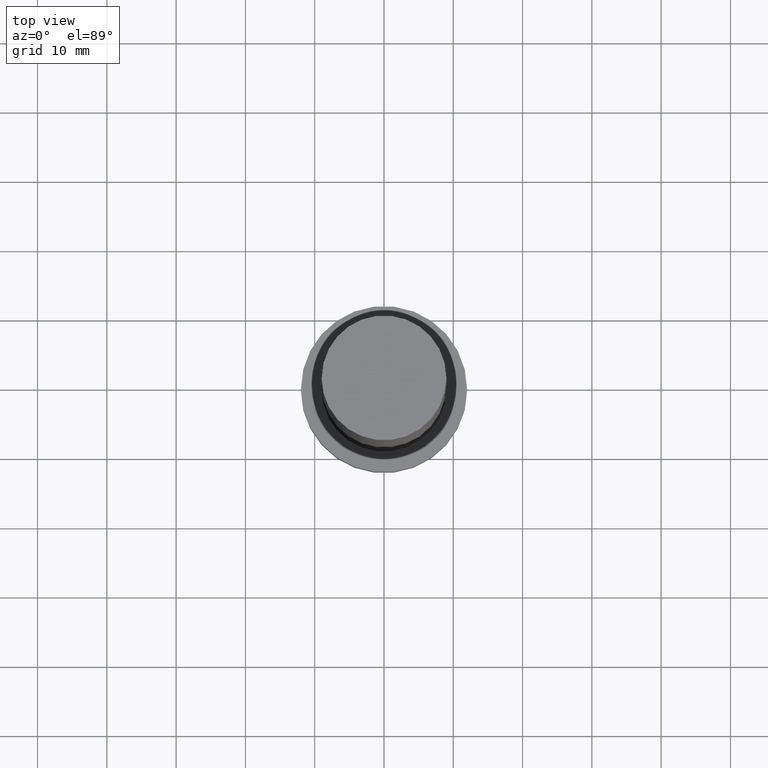
[diagram: clean part render]
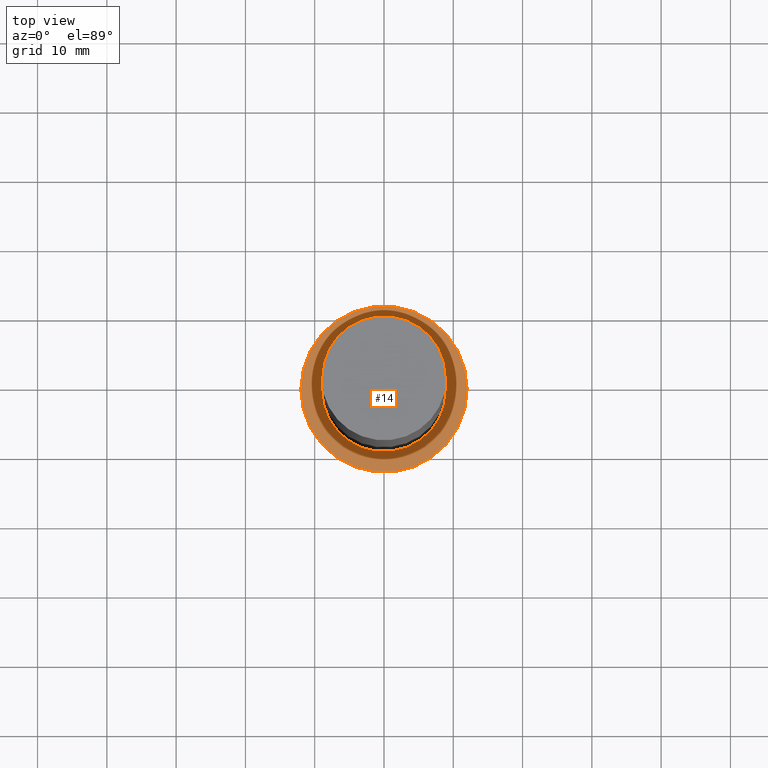
[diagram: same view with one face highlighted and labeled with its STEP entity id]
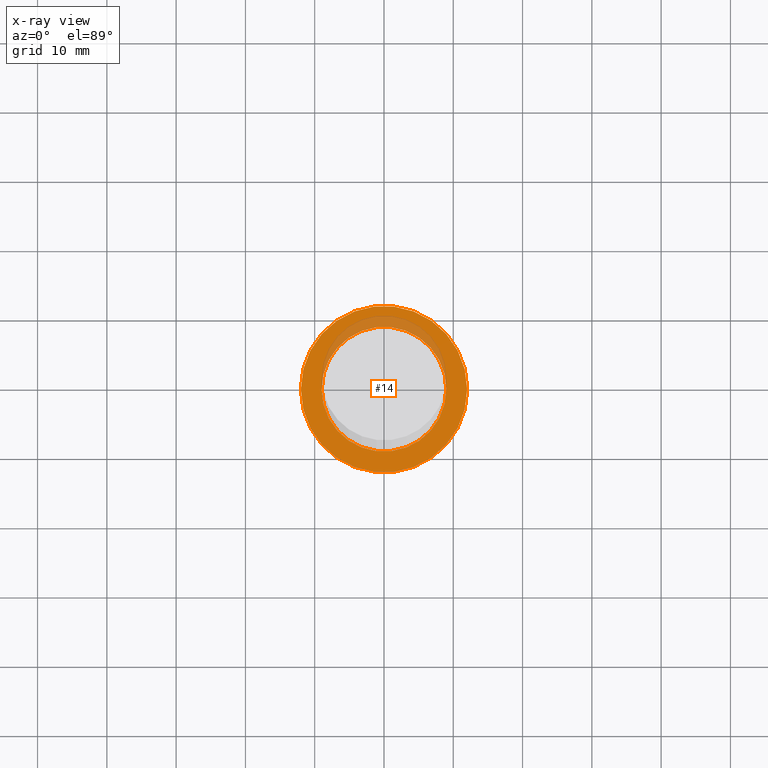
[diagram: x-ray of the same camera — body ghosted, the highlighted face saturated]
A machine part, top view. The second image highlights one B-rep face of the part: STEP entity #14.
The next image is the same camera in x-ray: the body ghosted, the highlighted face saturated — about 15% of this face is hidden behind the body in this view.
In plain terms, the highlighted planar face has unit normal (0, 0, 1).
Its self-contained STEP definition (entity closure, byte-faithful):
#6 = EDGE_CURVE ( 'NONE', #217, #155, #44, .T. ) ;
#7 = CIRCLE ( 'NONE', #166, 9.000000000000001776 ) ;
#12 = DIRECTION ( 'NONE',  ( 0.000000000000000000, 0.000000000000000000, 1.000000000000000000 ) ) ;
#14 = ADVANCED_FACE ( 'NONE', ( #234, #17 ), #54, .T. ) ;
#17 = FACE_OUTER_BOUND ( 'NONE', #101, .T. ) ;
#24 = CIRCLE ( 'NONE', #223, 9.000000000000001776 ) ;
#28 = CARTESIAN_POINT ( 'NONE',  ( 9.000000000000001776, 1.102182119232617714E-15, 7.000000000000000000 ) ) ;
#30 = DIRECTION ( 'NONE',  ( 0.000000000000000000, 0.000000000000000000, 1.000000000000000000 ) ) ;
#44 = CIRCLE ( 'NONE', #199, 12.00000000000000178 ) ;
#49 = DIRECTION ( 'NONE',  ( 1.000000000000000000, 0.000000000000000000, 0.000000000000000000 ) ) ;
#54 = PLANE ( 'NONE',  #134 ) ;
#58 = CARTESIAN_POINT ( 'NONE',  ( 0.000000000000000000, 0.000000000000000000, 7.000000000000000000 ) ) ;
#63 = DIRECTION ( 'NONE',  ( 1.000000000000000000, 0.000000000000000000, 0.000000000000000000 ) ) ;
#72 = EDGE_CURVE ( 'NONE', #155, #217, #247, .T. ) ;
#80 = DIRECTION ( 'NONE',  ( 0.000000000000000000, 0.000000000000000000, 1.000000000000000000 ) ) ;
#97 = EDGE_LOOP ( 'NONE', ( #114, #195 ) ) ;
#99 = VERTEX_POINT ( 'NONE', #110 ) ;
#101 = EDGE_LOOP ( 'NONE', ( #248, #170 ) ) ;
#107 = DIRECTION ( 'NONE',  ( 1.000000000000000000, 0.000000000000000000, -0.000000000000000000 ) ) ;
#110 = CARTESIAN_POINT ( 'NONE',  ( -9.000000000000001776, 0.000000000000000000, 7.000000000000000000 ) ) ;
#111 = DIRECTION ( 'NONE',  ( 1.000000000000000000, 0.000000000000000000, 0.000000000000000000 ) ) ;
#114 = ORIENTED_EDGE ( 'NONE', *, *, #192, .F. ) ;
#119 = CARTESIAN_POINT ( 'NONE',  ( 0.000000000000000000, 0.000000000000000000, 7.000000000000000000 ) ) ;
#123 = VERTEX_POINT ( 'NONE', #28 ) ;
#134 = AXIS2_PLACEMENT_3D ( 'NONE', #58, #80, #107 ) ;
#148 = DIRECTION ( 'NONE',  ( 0.000000000000000000, 0.000000000000000000, 1.000000000000000000 ) ) ;
#155 = VERTEX_POINT ( 'NONE', #165 ) ;
#165 = CARTESIAN_POINT ( 'NONE',  ( 12.00000000000000178, 1.469576158976824144E-15, 7.000000000000000000 ) ) ;
#166 = AXIS2_PLACEMENT_3D ( 'NONE', #189, #148, #190 ) ;
#170 = ORIENTED_EDGE ( 'NONE', *, *, #72, .T. ) ;
#175 = EDGE_CURVE ( 'NONE', #123, #99, #24, .T. ) ;
#180 = CARTESIAN_POINT ( 'NONE',  ( 0.000000000000000000, 0.000000000000000000, 7.000000000000000000 ) ) ;
#189 = CARTESIAN_POINT ( 'NONE',  ( 0.000000000000000000, 0.000000000000000000, 7.000000000000000000 ) ) ;
#190 = DIRECTION ( 'NONE',  ( 1.000000000000000000, 0.000000000000000000, 0.000000000000000000 ) ) ;
#192 = EDGE_CURVE ( 'NONE', #99, #123, #7, .T. ) ;
#195 = ORIENTED_EDGE ( 'NONE', *, *, #175, .F. ) ;
#199 = AXIS2_PLACEMENT_3D ( 'NONE', #119, #200, #63 ) ;
#200 = DIRECTION ( 'NONE',  ( 0.000000000000000000, 0.000000000000000000, 1.000000000000000000 ) ) ;
#203 = CARTESIAN_POINT ( 'NONE',  ( -12.00000000000000178, 0.000000000000000000, 7.000000000000000000 ) ) ;
#205 = CARTESIAN_POINT ( 'NONE',  ( 0.000000000000000000, 0.000000000000000000, 7.000000000000000000 ) ) ;
#216 = AXIS2_PLACEMENT_3D ( 'NONE', #180, #12, #49 ) ;
#217 = VERTEX_POINT ( 'NONE', #203 ) ;
#223 = AXIS2_PLACEMENT_3D ( 'NONE', #205, #30, #111 ) ;
#234 = FACE_BOUND ( 'NONE', #97, .T. ) ;
#247 = CIRCLE ( 'NONE', #216, 12.00000000000000178 ) ;
#248 = ORIENTED_EDGE ( 'NONE', *, *, #6, .T. ) ;